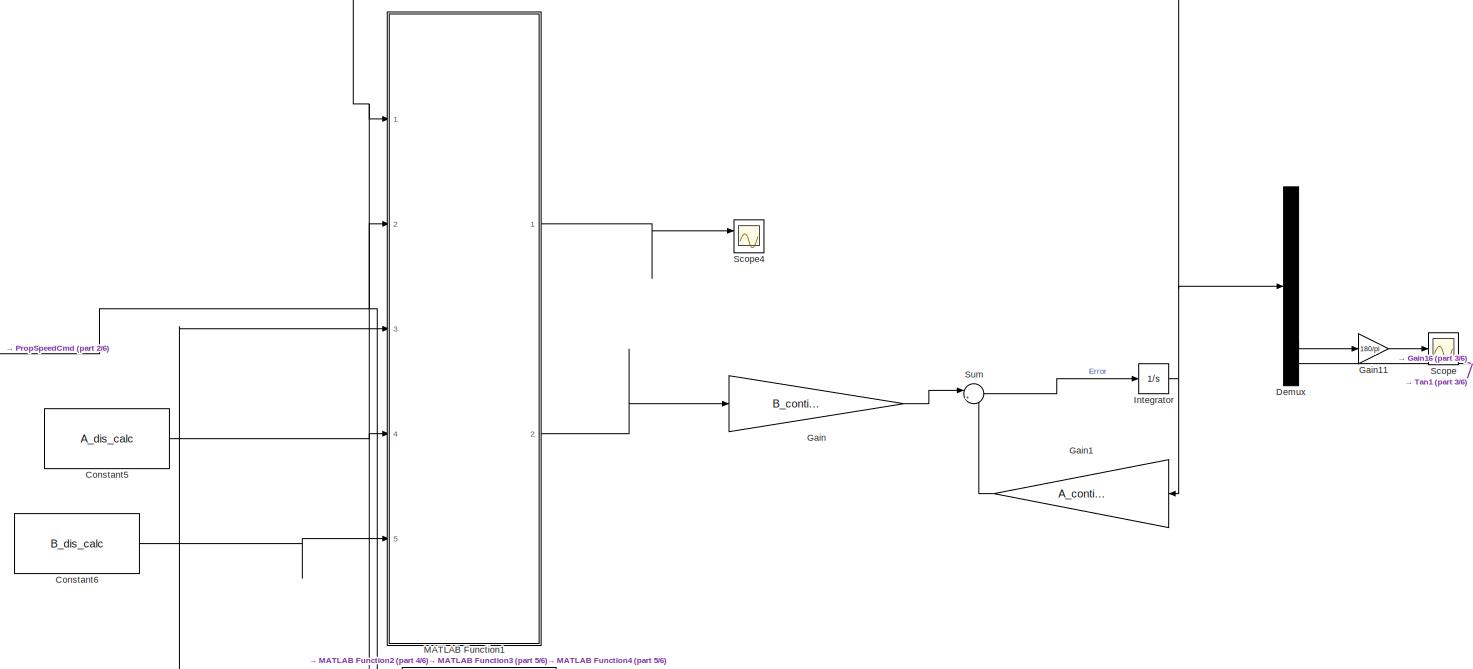
[diagram: root canvas - part 1/6, top center region]
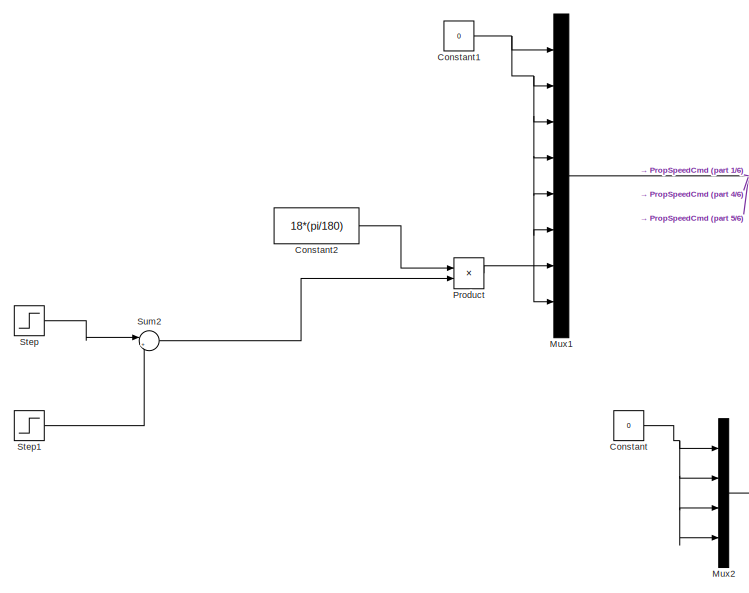
[diagram: root canvas - part 2/6, top left region]
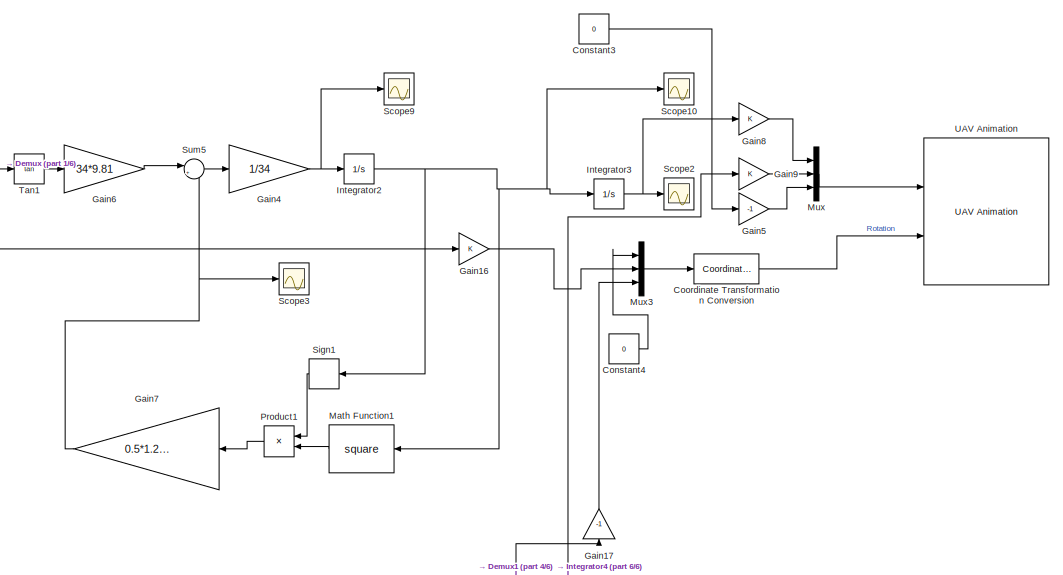
[diagram: root canvas - part 3/6, top right region]
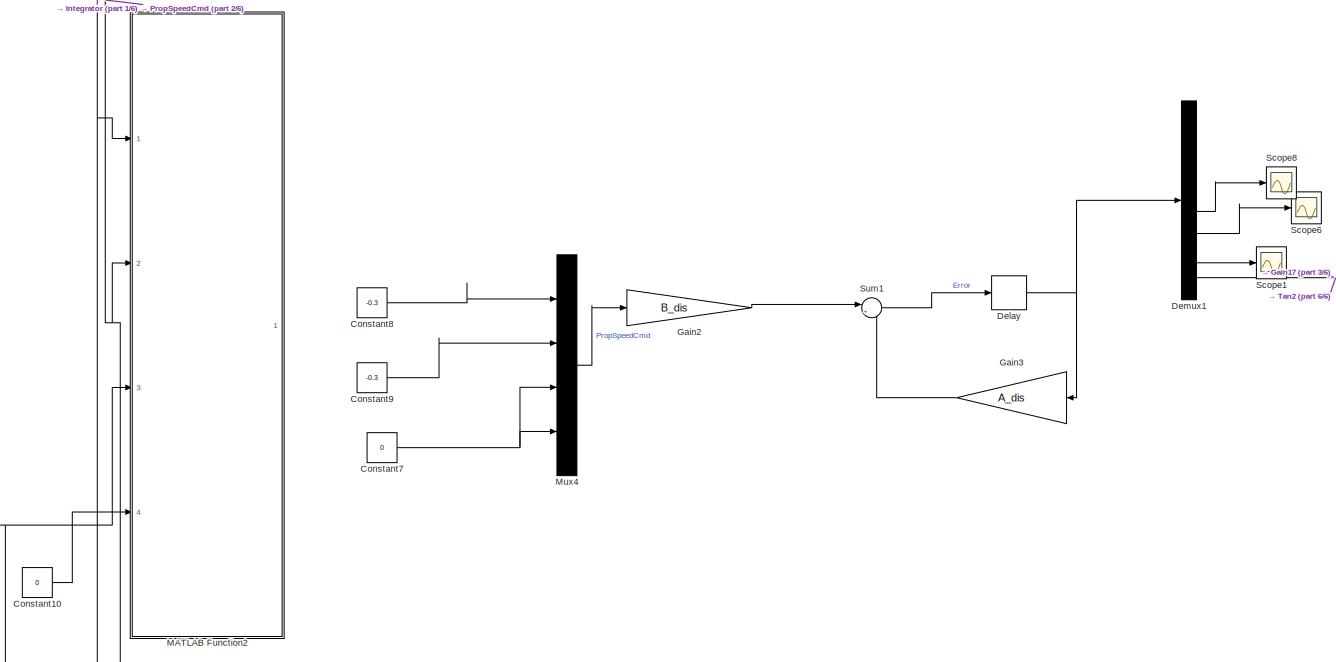
[diagram: root canvas - part 4/6, central region]
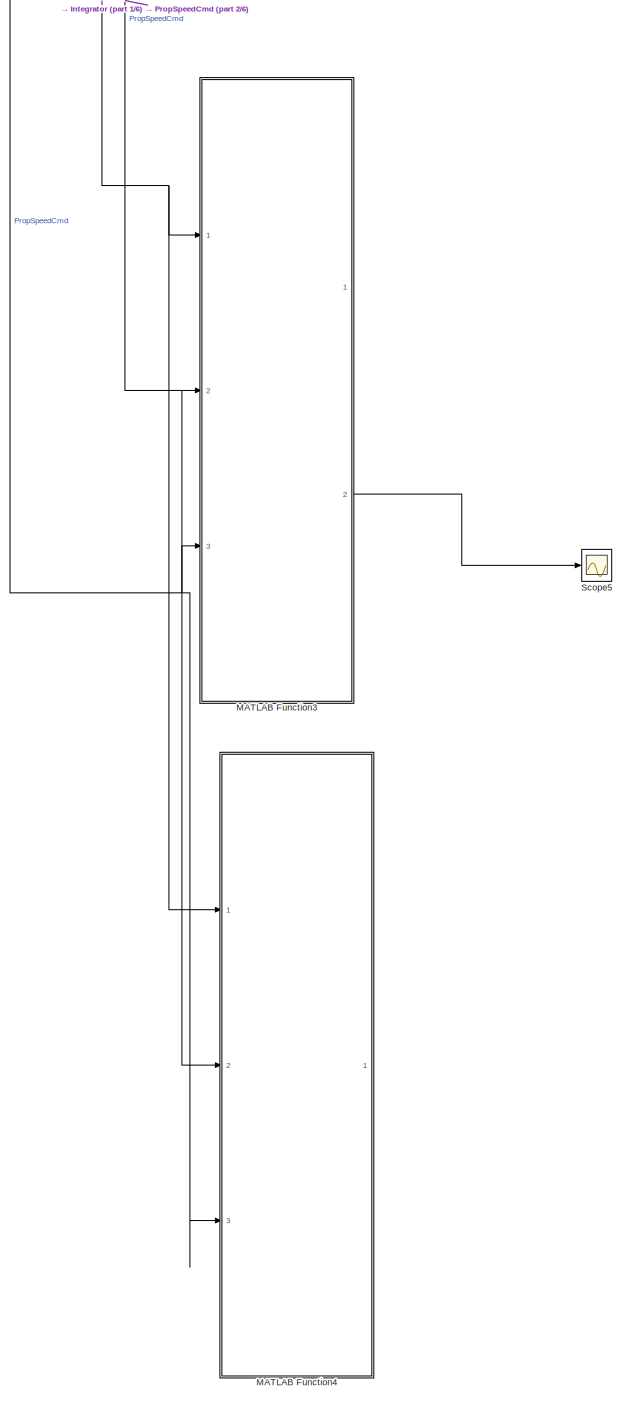
[diagram: root canvas - part 5/6, bottom left region]
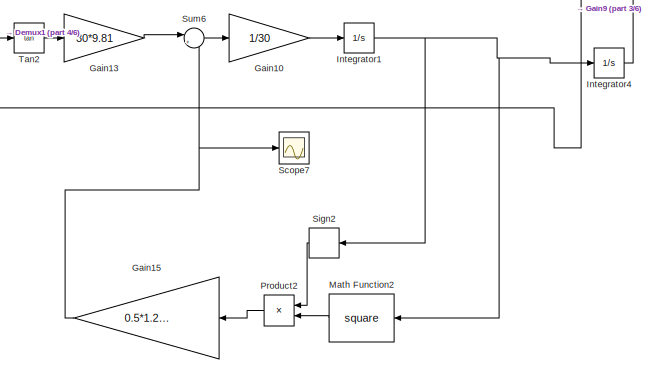
[diagram: root canvas - part 6/6, bottom right region]
MODEL slx_2eaee1eaff8f
KIND model
CONFIG AbsTol = auto
CONFIG EnableMultiTasking = off
CONFIG FixedStep = auto
CONFIG MaxStep = auto
CONFIG MinStep = auto
CONFIG RelTol = 1e-3
CONFIG SampleTimeConstraint = Unconstrained
CONFIG Solver = VariableStepAuto
CONFIG SolverName = VariableStepAuto
CONFIG StartTime = 0.0
CONFIG StopTime = t_sim
BLOCK [Constant] Constant
  OutDataTypeStr = double
  SampleTime = -1
  Value = 0
BLOCK [Constant] Constant1
  OutDataTypeStr = double
  SampleTime = -1
  Value = 0
BLOCK [Constant] Constant10
  OutDataTypeStr = double
  SampleTime = -1
  Value = 0
BLOCK [Constant] Constant2
  OutDataTypeStr = double
  Value = 18*(pi/180)
BLOCK [Constant] Constant3
  OutDataTypeStr = double
  SampleTime = -1
  Value = 0
BLOCK [Constant] Constant4
  OutDataTypeStr = double
  SampleTime = -1
  Value = 0
BLOCK [Constant] Constant5
  Value = A_dis_calc
BLOCK [Constant] Constant6
  Value = B_dis_calc
BLOCK [Constant] Constant7
  OutDataTypeStr = double
  SampleTime = -1
  Value = 0
BLOCK [Constant] Constant8
  OutDataTypeStr = double
  SampleTime = -1
  Value = -0.3
BLOCK [Constant] Constant9
  OutDataTypeStr = double
  SampleTime = -1
  Value = -0.3
BLOCK [Reference] Coordinate Transformation Conversion  REF=robotcorelib/Coordinate Transformation Conversion
  Ports = [1, 1]
  SourceBlock = robotcorelib/Coordinate Transformation Conversion
  SourceProductBaseCode = RO
  SourceProductName = Robotics System Toolbox
  SourceType = robotics.slcore.internal.block.CoordinateTransformationConversion
BLOCK [Delay] Delay
  DelayLength = 1
  InitialCondition = zeros(8,1)
  InputPortMap = u0
  Ports = [1, 1]
  SampleTime = 0.078
BLOCK [Demux] Demux
  DisplayOption = bar
  Outputs = 8
  Ports = [1, 8]
BLOCK [Demux] Demux1
  DisplayOption = bar
  Outputs = 8
  Ports = [1, 8]
BLOCK [Gain] Gain
  Gain = B_continous_time
  Multiplication = Matrix(K*u)
  OutDataTypeStr = Inherit: Inherit via internal rule
  ParamDataTypeStr = Inherit: Inherit via internal rule
  SaturateOnIntegerOverflow = off
BLOCK [Gain] Gain1
  Gain = A_continous_time
  Multiplication = Matrix(K*u)
  OutDataTypeStr = Inherit: Inherit via internal rule
  ParamDataTypeStr = Inherit: Inherit via internal rule
  SaturateOnIntegerOverflow = off
BLOCK [Gain] Gain10
  Gain = 1/30
  OutDataTypeStr = Inherit: Inherit via internal rule
  ParamDataTypeStr = Inherit: Inherit via internal rule
  SaturateOnIntegerOverflow = off
BLOCK [Gain] Gain11
  Gain = 180/pi
  OutDataTypeStr = Inherit: Inherit via internal rule
  ParamDataTypeStr = Inherit: Inherit via internal rule
  SaturateOnIntegerOverflow = off
BLOCK [Gain] Gain13
  Gain = 30*9.81
  OutDataTypeStr = Inherit: Inherit via internal rule
  ParamDataTypeStr = Inherit: Inherit via internal rule
  SaturateOnIntegerOverflow = off
BLOCK [Gain] Gain15
  Gain = 0.5*1.215*1.05*0
  OutDataTypeStr = Inherit: Inherit via internal rule
  ParamDataTypeStr = Inherit: Inherit via internal rule
  SaturateOnIntegerOverflow = off
BLOCK [Gain] Gain16
  OutDataTypeStr = Inherit: Inherit via internal rule
  ParamDataTypeStr = Inherit: Inherit via internal rule
  SaturateOnIntegerOverflow = off
BLOCK [Gain] Gain17
  Gain = -1
  OutDataTypeStr = Inherit: Inherit via internal rule
  ParamDataTypeStr = Inherit: Inherit via internal rule
  SaturateOnIntegerOverflow = off
BLOCK [Gain] Gain2
  Gain = B_dis
  Multiplication = Matrix(K*u)
  OutDataTypeStr = Inherit: Inherit via internal rule
  ParamDataTypeStr = Inherit: Inherit via internal rule
  SaturateOnIntegerOverflow = off
BLOCK [Gain] Gain3
  Gain = A_dis
  Multiplication = Matrix(K*u)
  OutDataTypeStr = Inherit: Inherit via internal rule
  ParamDataTypeStr = Inherit: Inherit via internal rule
  SaturateOnIntegerOverflow = off
BLOCK [Gain] Gain4
  Gain = 1/34
  OutDataTypeStr = Inherit: Inherit via internal rule
  ParamDataTypeStr = Inherit: Inherit via internal rule
  SaturateOnIntegerOverflow = off
BLOCK [Gain] Gain5
  Gain = -1
  OutDataTypeStr = Inherit: Inherit via internal rule
  ParamDataTypeStr = Inherit: Inherit via internal rule
  SaturateOnIntegerOverflow = off
BLOCK [Gain] Gain6
  Gain = 34*9.81
  OutDataTypeStr = Inherit: Inherit via internal rule
  ParamDataTypeStr = Inherit: Inherit via internal rule
  SaturateOnIntegerOverflow = off
BLOCK [Gain] Gain7
  Gain = 0.5*1.215*1.05*0
  OutDataTypeStr = Inherit: Inherit via internal rule
  ParamDataTypeStr = Inherit: Inherit via internal rule
  SaturateOnIntegerOverflow = off
BLOCK [Gain] Gain8
  OutDataTypeStr = Inherit: Inherit via internal rule
  ParamDataTypeStr = Inherit: Inherit via internal rule
  SaturateOnIntegerOverflow = off
BLOCK [Gain] Gain9
  OutDataTypeStr = Inherit: Inherit via internal rule
  ParamDataTypeStr = Inherit: Inherit via internal rule
  SaturateOnIntegerOverflow = off
BLOCK [Integrator] Integrator
  InitialCondition = zeros(8,1)
  Ports = [1, 1]
BLOCK [Integrator] Integrator1
  Ports = [1, 1]
BLOCK [Integrator] Integrator2
  Ports = [1, 1]
BLOCK [Integrator] Integrator3
  Ports = [1, 1]
BLOCK [Integrator] Integrator4
  Ports = [1, 1]
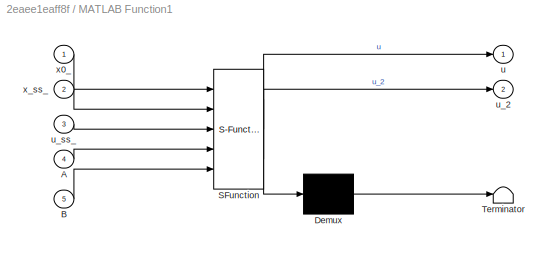
BLOCK [SubSystem] MATLAB Function1
  ErrorFcn = Stateflow.Translate.translate
  PermitHierarchicalResolution = ExplicitOnly
  Ports = [5, 2]
  RequestExecContextInheritance = off
  SFBlockType = MATLAB Function
  SystemSampleTime = 0.01
  TreatAsAtomicUnit = on
BLOCK [Demux] MATLAB Function1/ Demux 
  Outputs = 1
  Ports = [1, 1]
BLOCK [S-Function] MATLAB Function1/ SFunction 
  EnableBusSupport = on
  FunctionName = sf_sfun
  PortCounts = [5 3]
  Ports = [5, 3]
  SFcnIsStateOwnerBlock = off
  SFunctionDeploymentMode = off
  Tag = Stateflow S-Function testiranje_bloka_bez_traj 1
BLOCK [Terminator] MATLAB Function1/ Terminator 
BLOCK [Inport] MATLAB Function1/A
  IconDisplay = Port number
  Port = 4
BLOCK [Inport] MATLAB Function1/B
  IconDisplay = Port number
  Port = 5
BLOCK [Outport] MATLAB Function1/u
  IconDisplay = Port number
BLOCK [Outport] MATLAB Function1/u_2
  IconDisplay = Port number
  Port = 2
BLOCK [Inport] MATLAB Function1/u_ss_
  IconDisplay = Port number
  Port = 3
BLOCK [Inport] MATLAB Function1/x0_
  IconDisplay = Port number
BLOCK [Inport] MATLAB Function1/x_ss_
  IconDisplay = Port number
  Port = 2
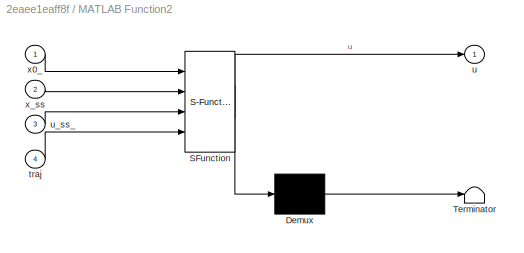
BLOCK [SubSystem] MATLAB Function2
  ErrorFcn = Stateflow.Translate.translate
  PermitHierarchicalResolution = ExplicitOnly
  Ports = [4, 1]
  RequestExecContextInheritance = off
  SFBlockType = MATLAB Function
  SystemSampleTime = 0.078
  TreatAsAtomicUnit = on
BLOCK [Demux] MATLAB Function2/ Demux 
  Outputs = 1
  Ports = [1, 1]
BLOCK [S-Function] MATLAB Function2/ SFunction 
  EnableBusSupport = on
  FunctionName = sf_sfun
  PortCounts = [4 2]
  Ports = [4, 2]
  SFcnIsStateOwnerBlock = off
  SFunctionDeploymentMode = off
  Tag = Stateflow S-Function testiranje_bloka_bez_traj 6
BLOCK [Terminator] MATLAB Function2/ Terminator 
BLOCK [Inport] MATLAB Function2/traj
  IconDisplay = Port number
  Port = 4
BLOCK [Outport] MATLAB Function2/u
  IconDisplay = Port number
BLOCK [Inport] MATLAB Function2/u_ss_
  IconDisplay = Port number
  Port = 3
BLOCK [Inport] MATLAB Function2/x0_
  IconDisplay = Port number
BLOCK [Inport] MATLAB Function2/x_ss
  IconDisplay = Port number
  Port = 2
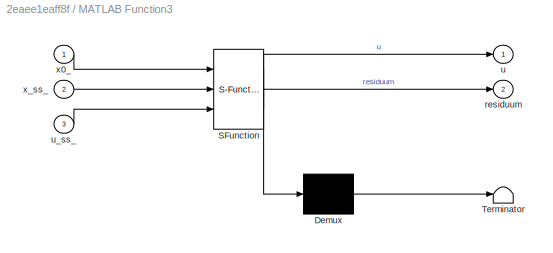
BLOCK [SubSystem] MATLAB Function3
  ErrorFcn = Stateflow.Translate.translate
  PermitHierarchicalResolution = ExplicitOnly
  Ports = [3, 2]
  RequestExecContextInheritance = off
  SFBlockType = MATLAB Function
  SystemSampleTime = 0.078
  TreatAsAtomicUnit = on
BLOCK [Demux] MATLAB Function3/ Demux 
  Outputs = 1
  Ports = [1, 1]
BLOCK [S-Function] MATLAB Function3/ SFunction 
  EnableBusSupport = on
  FunctionName = sf_sfun
  PortCounts = [3 3]
  Ports = [3, 3]
  SFcnIsStateOwnerBlock = off
  SFunctionDeploymentMode = off
  Tag = Stateflow S-Function testiranje_bloka_bez_traj 2
BLOCK [Terminator] MATLAB Function3/ Terminator 
BLOCK [Outport] MATLAB Function3/residuum
  IconDisplay = Port number
  Port = 2
BLOCK [Outport] MATLAB Function3/u
  IconDisplay = Port number
BLOCK [Inport] MATLAB Function3/u_ss_
  IconDisplay = Port number
  Port = 3
BLOCK [Inport] MATLAB Function3/x0_
  IconDisplay = Port number
BLOCK [Inport] MATLAB Function3/x_ss_
  IconDisplay = Port number
  Port = 2
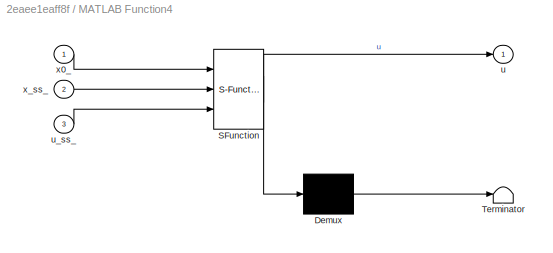
BLOCK [SubSystem] MATLAB Function4
  ErrorFcn = Stateflow.Translate.translate
  PermitHierarchicalResolution = ExplicitOnly
  Ports = [3, 1]
  RequestExecContextInheritance = off
  SFBlockType = MATLAB Function
  SystemSampleTime = 0.078
  TreatAsAtomicUnit = on
BLOCK [Demux] MATLAB Function4/ Demux 
  Outputs = 1
  Ports = [1, 1]
BLOCK [S-Function] MATLAB Function4/ SFunction 
  EnableBusSupport = on
  FunctionName = sf_sfun
  PortCounts = [3 2]
  Ports = [3, 2]
  SFcnIsStateOwnerBlock = off
  SFunctionDeploymentMode = off
  Tag = Stateflow S-Function testiranje_bloka_bez_traj 3
BLOCK [Terminator] MATLAB Function4/ Terminator 
BLOCK [Outport] MATLAB Function4/u
  IconDisplay = Port number
BLOCK [Inport] MATLAB Function4/u_ss_
  IconDisplay = Port number
  Port = 3
BLOCK [Inport] MATLAB Function4/x0_
  IconDisplay = Port number
BLOCK [Inport] MATLAB Function4/x_ss_
  IconDisplay = Port number
  Port = 2
BLOCK [Math] Math Function1
  Operator = square
  Ports = [1, 1]
BLOCK [Math] Math Function2
  Operator = square
  Ports = [1, 1]
BLOCK [Mux] Mux
  DisplayOption = bar
  Inputs = 3
  Ports = [3, 1]
BLOCK [Mux] Mux1
  DisplayOption = bar
  Inputs = 8
  Ports = [8, 1]
BLOCK [Mux] Mux2
  DisplayOption = bar
  Ports = [4, 1]
BLOCK [Mux] Mux3
  DisplayOption = bar
  Inputs = 3
  Ports = [3, 1]
BLOCK [Mux] Mux4
  DisplayOption = bar
  Ports = [4, 1]
BLOCK [Product] Product
  InputSameDT = off
  OutDataTypeStr = Inherit: Inherit via internal rule
  Ports = [2, 1]
  RndMeth = Floor
  SaturateOnIntegerOverflow = off
BLOCK [Product] Product1
  InputSameDT = off
  OutDataTypeStr = Inherit: Inherit via internal rule
  Ports = [2, 1]
  RndMeth = Floor
  SaturateOnIntegerOverflow = off
BLOCK [Product] Product2
  InputSameDT = off
  OutDataTypeStr = Inherit: Inherit via internal rule
  Ports = [2, 1]
  RndMeth = Floor
  SaturateOnIntegerOverflow = off
BLOCK [Scope] Scope
  Floating = off
  NumInputPorts = 1
  Ports = [1]
  ScopeSpecificationString = Simulink.scopes.TimeScopeBlockCfg('CurrentConfiguration', extmgr.ConfigurationSet(extmgr.Configuration('Core','General UI',true),extmgr.Configuration('Core','Source UI',true),extmgr.Configuration('Sources','WiredSimulink',true),extmgr.Configuration('Visuals','Time Domain',true,'SerializedDisplays',{struct('MinYLimReal','-19.53197','MaxYLimReal','22.31565','YLabelReal','','MinYLimMag','0.00000','Ma...<+1683ch>
BLOCK [Scope] Scope1
  Floating = off
  NumInputPorts = 1
  Ports = [1]
  ScopeSpecificationString = Simulink.scopes.TimeScopeBlockCfg('CurrentConfiguration', extmgr.ConfigurationSet(extmgr.Configuration('Core','General UI',true),extmgr.Configuration('Core','Source UI',true),extmgr.Configuration('Sources','WiredSimulink',true,'DataLoggingVariableName','ScopeData1'),extmgr.Configuration('Visuals','Time Domain',true,'SerializedDisplays',{struct('MinYLimReal','-6.99727','MaxYLimReal','0.77994','YLab...<+1719ch>
BLOCK [Scope] Scope10
  Floating = off
  NumInputPorts = 1
  Ports = [1]
  ScopeSpecificationString = Simulink.scopes.TimeScopeBlockCfg('CurrentConfiguration', extmgr.ConfigurationSet(extmgr.Configuration('Core','General UI',true),extmgr.Configuration('Core','Source UI',true),extmgr.Configuration('Sources','WiredSimulink',true,'DataLoggingVariableName','ScopeData2'),extmgr.Configuration('Visuals','Time Domain',true,'SerializedDisplays',{struct('MinYLimReal','-0.40765','MaxYLimReal','3.51957','YLab...<+1710ch>
BLOCK [Scope] Scope2
  Floating = off
  NumInputPorts = 1
  Ports = [1]
  ScopeSpecificationString = Simulink.scopes.TimeScopeBlockCfg('CurrentConfiguration', extmgr.ConfigurationSet(extmgr.Configuration('Core','General UI',true),extmgr.Configuration('Core','Source UI',true),extmgr.Configuration('Sources','WiredSimulink',true,'DataLoggingVariableName','ScopeData1'),extmgr.Configuration('Visuals','Time Domain',true,'SerializedDisplays',{struct('MinYLimReal','-3.90153','MaxYLimReal','35.10008','YLa...<+1726ch>
BLOCK [Scope] Scope3
  Floating = off
  NumInputPorts = 1
  Ports = [1]
  ScopeSpecificationString = Simulink.scopes.TimeScopeBlockCfg('CurrentConfiguration', extmgr.ConfigurationSet(extmgr.Configuration('Core','General UI',true),extmgr.Configuration('Core','Source UI',true),extmgr.Configuration('Sources','WiredSimulink',true,'DataLoggingVariableName','ScopeData2'),extmgr.Configuration('Visuals','Time Domain',true,'SerializedDisplays',{struct('MinYLimReal','-1.00000','MaxYLimReal','1.00000','YLab...<+1416ch>
BLOCK [Scope] Scope4
  Floating = off
  NumInputPorts = 2
  Ports = [2]
  ScopeSpecificationString = Simulink.scopes.TimeScopeBlockCfg('CurrentConfiguration', extmgr.ConfigurationSet(extmgr.Configuration('Core','General UI',true),extmgr.Configuration('Core','Source UI',true),extmgr.Configuration('Sources','WiredSimulink',true,'DataLoggingVariableName','ScopeData1'),extmgr.Configuration('Visuals','Time Domain',true,'SerializedDisplays',{struct('MinYLimReal','-0.11183','MaxYLimReal','0.35958','YLab...<+1512ch>
BLOCK [Scope] Scope5
  Floating = off
  NumInputPorts = 1
  Ports = [1]
  ScopeSpecificationString = Simulink.scopes.TimeScopeBlockCfg('CurrentConfiguration', extmgr.ConfigurationSet(extmgr.Configuration('Core','General UI',true),extmgr.Configuration('Core','Source UI',true),extmgr.Configuration('Sources','WiredSimulink',true,'DataLoggingVariableName','ScopeData1'),extmgr.Configuration('Visuals','Time Domain',true,'SerializedDisplays',{struct('MinYLimReal','-83.49123','MaxYLimReal','751.42111','Y...<+1735ch>
BLOCK [Scope] Scope6
  Floating = off
  NumInputPorts = 1
  Ports = [1]
  ScopeSpecificationString = Simulink.scopes.TimeScopeBlockCfg('CurrentConfiguration', extmgr.ConfigurationSet(extmgr.Configuration('Core','General UI',true),extmgr.Configuration('Core','Source UI',true),extmgr.Configuration('Sources','WiredSimulink',true,'DataLoggingVariableName','ScopeData1'),extmgr.Configuration('Visuals','Time Domain',true,'SerializedDisplays',{struct('MinYLimReal','-1.00000','MaxYLimReal','1.00000','YLab...<+1719ch>
BLOCK [Scope] Scope7
  Floating = off
  NumInputPorts = 1
  Ports = [1]
  ScopeSpecificationString = Simulink.scopes.TimeScopeBlockCfg('CurrentConfiguration', extmgr.ConfigurationSet(extmgr.Configuration('Core','General UI',true),extmgr.Configuration('Core','Source UI',true),extmgr.Configuration('Sources','WiredSimulink',true,'DataLoggingVariableName','ScopeData3'),extmgr.Configuration('Visuals','Time Domain',true,'SerializedDisplays',{struct('MinYLimReal','-1.00000','MaxYLimReal','1.00000','YLab...<+1416ch>
BLOCK [Scope] Scope8
  Floating = off
  NumInputPorts = 1
  Ports = [1]
  ScopeSpecificationString = Simulink.scopes.TimeScopeBlockCfg('CurrentConfiguration', extmgr.ConfigurationSet(extmgr.Configuration('Core','General UI',true),extmgr.Configuration('Core','Source UI',true),extmgr.Configuration('Sources','WiredSimulink',true,'DataLoggingVariableName','ScopeData2'),extmgr.Configuration('Visuals','Time Domain',true,'SerializedDisplays',{struct('MinYLimReal','-1.00000','MaxYLimReal','1.00000','YLab...<+1719ch>
BLOCK [Scope] Scope9
  Floating = off
  NumInputPorts = 1
  Ports = [1]
  ScopeSpecificationString = Simulink.scopes.TimeScopeBlockCfg('CurrentConfiguration', extmgr.ConfigurationSet(extmgr.Configuration('Core','General UI',true),extmgr.Configuration('Core','Source UI',true),extmgr.Configuration('Sources','WiredSimulink',true,'DataLoggingVariableName','ScopeData1'),extmgr.Configuration('Visuals','Time Domain',true,'SerializedDisplays',{struct('MinYLimReal','-0.59873','MaxYLimReal','3.06135','YLab...<+1712ch>
BLOCK [Signum] Sign1
BLOCK [Signum] Sign2
BLOCK [Step] Step
  SampleTime = 0
  Time = 0
BLOCK [Step] Step1
  After = 2
  SampleTime = 0
  Time = 15
BLOCK [Sum] Sum
  IconShape = round
  InputSameDT = off
  Inputs = |++
  OutDataTypeStr = Inherit: Inherit via internal rule
  Ports = [2, 1]
  SaturateOnIntegerOverflow = off
BLOCK [Sum] Sum1
  IconShape = round
  InputSameDT = off
  Inputs = |++
  OutDataTypeStr = Inherit: Inherit via internal rule
  Ports = [2, 1]
  SaturateOnIntegerOverflow = off
BLOCK [Sum] Sum2
  IconShape = round
  InputSameDT = off
  Inputs = |+-
  OutDataTypeStr = Inherit: Inherit via internal rule
  Ports = [2, 1]
  SaturateOnIntegerOverflow = off
BLOCK [Sum] Sum5
  IconShape = round
  InputSameDT = off
  Inputs = |+-
  OutDataTypeStr = Inherit: Inherit via internal rule
  Ports = [2, 1]
  SaturateOnIntegerOverflow = off
BLOCK [Sum] Sum6
  IconShape = round
  InputSameDT = off
  Inputs = |+-
  OutDataTypeStr = Inherit: Inherit via internal rule
  Ports = [2, 1]
  SaturateOnIntegerOverflow = off
BLOCK [Trigonometry] Tan1
  Operator = tan
  Ports = [1, 1]
BLOCK [Trigonometry] Tan2
  Operator = tan
  Ports = [1, 1]
BLOCK [Reference] UAV Animation  REF=robotuavlib/UAV Animation
  Ports = [2]
  SourceBlock = robotuavlib/UAV Animation
  SourceProductName = Robotics System Toolbox
  SourceType = robotics.sluav.internal.system.UAVAnimation
LINE Constant10:1 -> MATLAB Function2:4
NET Constant1:1 -> Mux1:1, Mux1:2, Mux1:3, Mux1:4, Mux1:5, Mux1:6, Mux1:8
LINE Constant2:1 -> Product:1
LINE Constant3:1 -> Gain5:1
LINE Constant4:1 -> Mux3:1
LINE Constant5:1 -> MATLAB Function1:4
LINE Constant6:1 -> MATLAB Function1:5
NET Constant7:1 -> Mux4:3, Mux4:4
LINE Constant8:1 -> Mux4:1
LINE Constant9:1 -> Mux4:2
NET Constant:1 -> Mux2:1, Mux2:2, Mux2:3, Mux2:4
LINE Coordinate Transformation Conversion:1 -> UAV Animation:2
NET Delay:1 -> Demux1:1, Gain3:1
LINE Demux1:5 -> Scope8:1
LINE Demux1:6 -> Scope6:1
LINE Demux1:7 -> Scope1:1
NET Demux1:8 -> Gain17:1, Tan2:1
LINE Demux:7 -> Gain11:1
NET Demux:8 -> Gain16:1, Tan1:1
LINE Gain10:1 -> Integrator1:1
LINE Gain11:1 -> Scope:1
LINE Gain13:1 -> Sum6:1
NET Gain15:1 -> Scope7:1, Sum6:2
LINE Gain16:1 -> Mux3:2
LINE Gain17:1 -> Mux3:3
LINE Gain1:1 -> Sum:2
LINE Gain2:1 -> Sum1:1
LINE Gain3:1 -> Sum1:2
NET Gain4:1 -> Integrator2:1, Scope9:1
LINE Gain5:1 -> Mux:3
LINE Gain6:1 -> Sum5:1
NET Gain7:1 -> Scope3:1, Sum5:2
LINE Gain8:1 -> Mux:1
LINE Gain9:1 -> Mux:2
LINE Gain:1 -> Sum:1
NET Integrator1:1 -> Integrator4:1, Math Function2:1, Sign2:1
NET Integrator2:1 -> Integrator3:1, Math Function1:1, Scope10:1, Sign1:1
NET Integrator3:1 -> Gain8:1, Scope2:1
LINE Integrator4:1 -> Gain9:1
NET Integrator:1 -> Demux:1, Gain1:1, MATLAB Function1:1, MATLAB Function2:1, MATLAB Function3:1, MATLAB Function4:1
LINE MATLAB Function1:1 -> Scope4:1
LINE MATLAB Function1:2 -> Gain:1
LINE MATLAB Function3:2 -> Scope5:1
LINE Math Function1:1 -> Product1:2
LINE Math Function2:1 -> Product2:2
NET Mux1:1 -> MATLAB Function1:2, MATLAB Function2:2, MATLAB Function3:2, MATLAB Function4:2
NET Mux2:1 -> MATLAB Function1:3, MATLAB Function2:3, MATLAB Function3:3, MATLAB Function4:3
LINE Mux3:1 -> Coordinate Transformation Conversion:1
LINE Mux4:1 -> Gain2:1
LINE Mux:1 -> UAV Animation:1
LINE Product1:1 -> Gain7:1
LINE Product2:1 -> Gain15:1
LINE Product:1 -> Mux1:7
LINE Sign1:1 -> Product1:1
LINE Sign2:1 -> Product2:1
LINE Step1:1 -> Sum2:2
LINE Step:1 -> Sum2:1
LINE Sum1:1 -> Delay:1
LINE Sum2:1 -> Product:2
LINE Sum5:1 -> Gain4:1
LINE Sum6:1 -> Gain10:1
LINE Sum:1 -> Integrator:1
LINE Tan1:1 -> Gain6:1
LINE Tan2:1 -> Gain13:1
note: NET lines group one-source signal fan-out (src -> all destinations, sorted); 1:1 wires keep LINE
CHART MATLAB Function1 states=1 transitions=1
  STATE_LABEL 'eML_blk_kernel()'
  STATE_LABEL 'SCRIPT:\nfunction [u, u_2]  = adam(x0_, x_ss_, u_ss_, A, B)\n\npersistent new_desire_state  pred_horizon control_horizon max_iter    R R_delta ...\n           scale_MV_inv Q  scale_OV_inv gradients gradient_past ...\n           gradient_square_past gradient_past_tilda gradient_square_past_tilda ...\n           x_states deriv_wrt_u epsilon rho1 rho2 delta num_heuristic_vars ...\n           u_past u_curren...<+3608ch>'
CHART MATLAB Function3 states=1 transitions=1
  STATE_LABEL 'eML_blk_kernel()'
  STATE_LABEL 'SCRIPT:\nfunction [u,residuum]   = RMSProp(x0_, x_ss_, u_ss_)\n\npersistent new_desire_state  pred_horizon control_horizon max_iter   A B R R_delta ...\n    scale_MV_inv Q  scale_OV_inv gradients gradient_past ...\n    x_states deriv_wrt_u epsilon delta num_heuristic_vars ...\n    u_past u_current lambdas_x lambdas_u lambdas_u_ref u_horizon ref_old t u_last_step ...\n    du_max u_max  rho residuum_old \n\n...<+3608ch>'
CHART MATLAB Function4 states=1 transitions=1
  STATE_LABEL 'eML_blk_kernel()'
  STATE_LABEL 'SCRIPT:\nfunction u   = RMSPropNester(x0_, x_ss_, u_ss_)\n\npersistent new_desire_state  pred_horizon control_horizon max_iter   A B R R_delta ...\n    scale_MV_inv Q  scale_OV_inv gradients gradient_past ...\n    x_states deriv_wrt_u epsilon delta num_heuristic_vars ...\n    u_past u_current lambdas_x lambdas_u lambdas_u_ref u_horizon ref_old t u_last_step ...\n    du_max u_max  rho residuum_old alpha\n\n...<+3608ch>'
CHART MATLAB Function2 states=1 transitions=1
  STATE_LABEL 'eML_blk_kernel()'
  STATE_LABEL 'SCRIPT:\nfunction u  = adaGrad(x0_, x_ss, u_ss_, traj)\n\npersistent new_desire_state  pred_horizon control_horizon max_iter   A B R R_delta ...\n    scale_MV_inv Q  scale_OV_inv gradients gradient_past ...\n    x_states deriv_wrt_u epsilon delta num_heuristic_vars ...\n    u_past u_current lambdas_x lambdas_u lambdas_u_ref u_horizon ref_old t u_last_step ...\n    du_max u_max index_first \n\n\n\n\n\nif(isempt...<+3608ch>'
